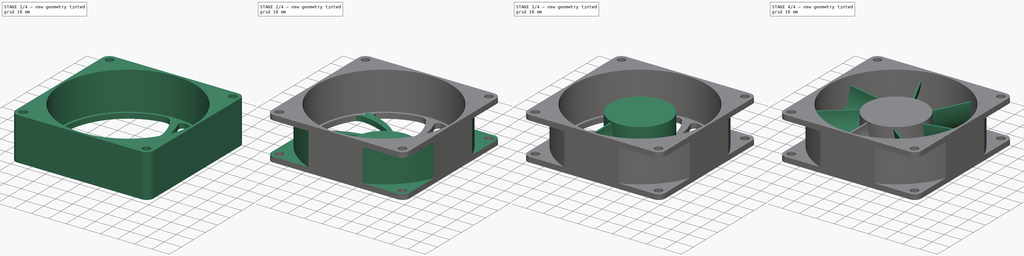
[diagram: build sequence overview — one tinted view per stage of 4, left to right]
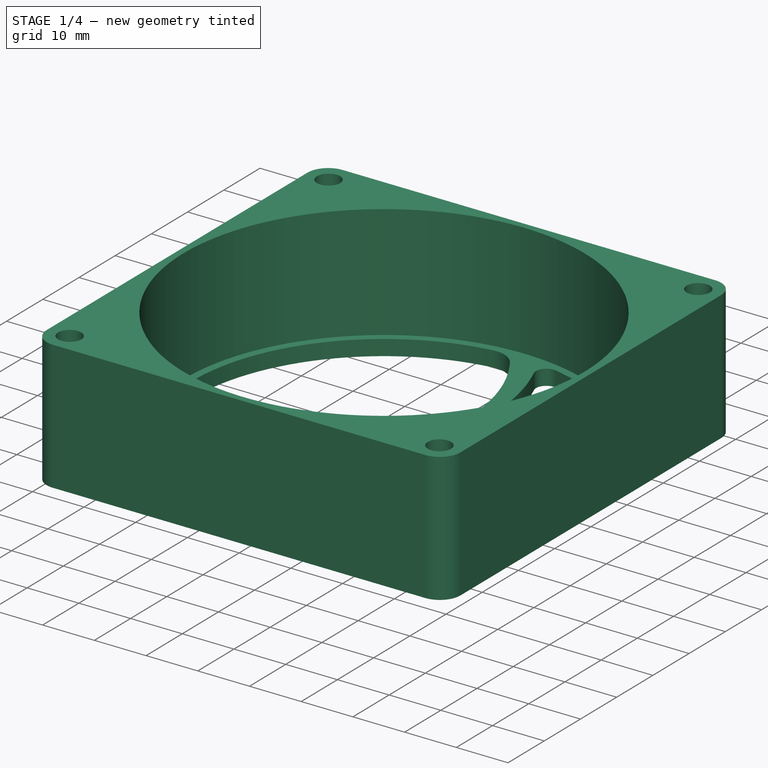
[diagram: stage 1 of 4 — iso view after this stage's code; geometry added in this stage tinted green]
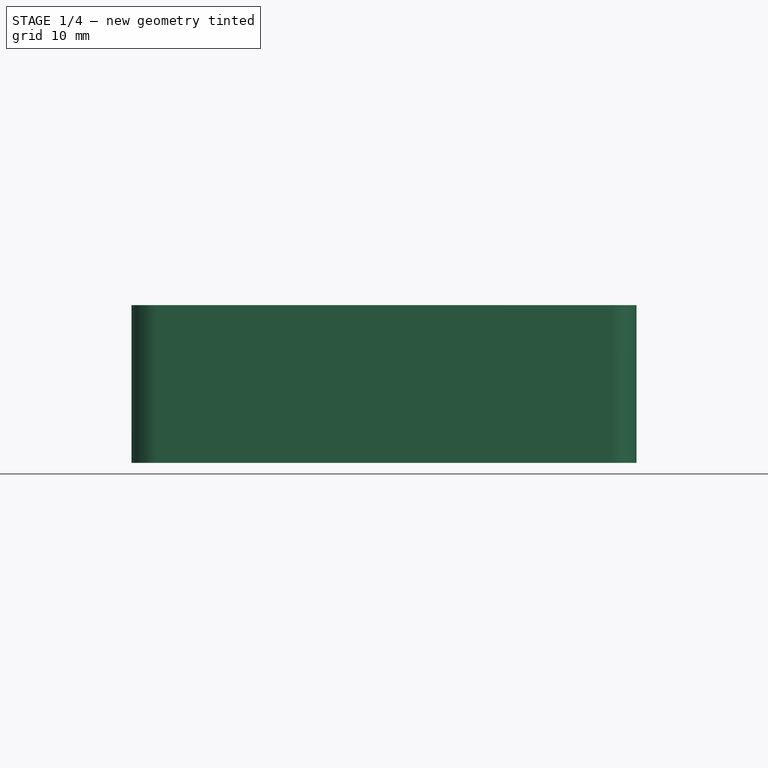
[diagram: stage 1 of 4 — front view after this stage's code; geometry added in this stage tinted green]
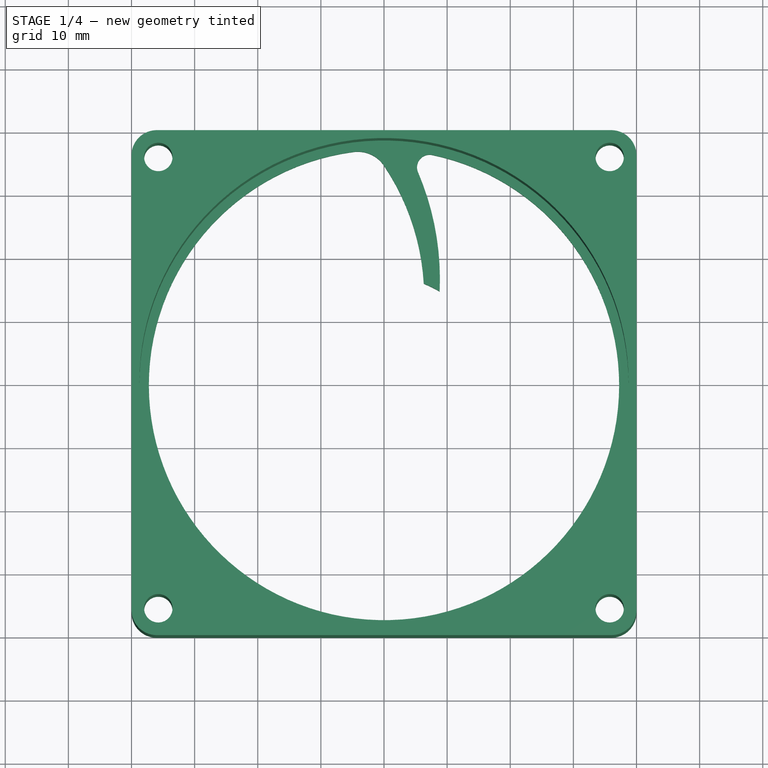
[diagram: stage 1 of 4 — top view after this stage's code; geometry added in this stage tinted green]
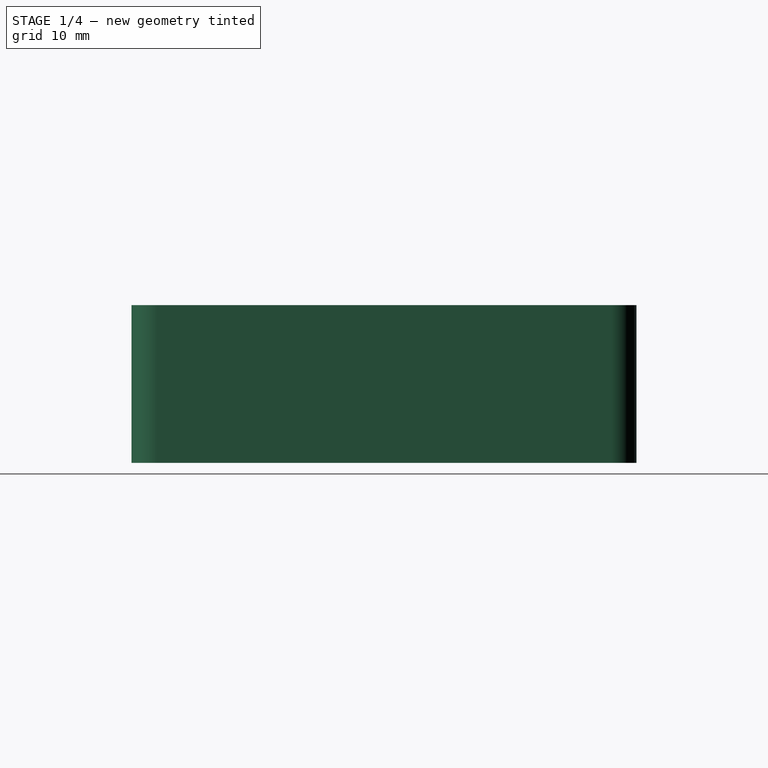
[diagram: stage 1 of 4 — right view after this stage's code; geometry added in this stage tinted green]
FCSTD DOCUMENT  (FreeCAD 1.0R39285 (Git))
Label: Axial Fan
License: All rights reserved
LicenseURL: https://en.wikipedia.org/wiki/All_rights_reserved
objects: Sketcher::SketchObject×9, PartDesign::CoordinateSystem×7, PartDesign::Pad×6, App::DocumentObjectGroup×3, PartDesign::PolarPattern×2, PartDesign::Pocket×2, PartDesign::Body×2, App::Link×2, Image::ImagePlane×1, Spreadsheet::Sheet×1, PartDesign::Groove×1, App::FeaturePython×1, App::Part×1
note: 58 computed .brp shape members not serialized (recipe doc carries the construction recipe); baked Part::Feature solids carry a one-line shape summary decoded from their .brp

FEATURE [Image::ImagePlane] _0mm_80X80X25_DC_12V_Low_Noise_8025_Brushless_Axial_Fan  label="80mm-80X80X25-DC-12V-Low-Noise-8025-Brushless-Axial-Fan"
  Placement = pos=(21,2.5,0) rot=(0,0,1;0rad)
  XSize = 149.403
  YSize = 103.082
FEATURE [Spreadsheet::Sheet] Spreadsheet
  cells = A1='Fan House; D1='Fan Blades; A2='Width; B2(FHWidth)==80 mm; D2='Height; E2(FBHeight)==21 mm; A3='Corner Radius; B3(FHCornerRadius)==4 mm; D3='Blade Outer Radius; E3(FBBladeOuterRadius)=; A4='Mount Hole Diameter; B4(FHMountHoleDiameter)==4.5 mm; D4='Blade Thickness; E4(FBBladeThickness)==1 mm; A5='Mount Hole Distance; B5(FHMountHoleDistance)==71.5 mm; D5='Blade Curve; E5(FBBladeCurve)==6 mm; A6='Center Hole Diameter; B6(FHCenterHoleDiameter)==77.5 mm; D6='Number of Blades; E6(FBNumberOfBlades)=7; A7='Height; B7(FHHeight)==25 mm; D7='Free Space; E7(FBFreeSpace)==0.5 mm; A8='Center Arms Radius Outer; B8(FHCenterArmsRadiusOuter)==43.2 mm; A9='Center Arms Radius Inner; B9(FHCenterArmsRadiusInner)==37.4 mm; A10='Center Arms Thickness; B10(FHCenterArmsThickness)==3 mm; A11='Center Arms Width Inner; B11(FHCenterArmsWidthInner)==2.8 mm; A12='Center Arms Width Outer; B12(FHCenterArmsWidthOuter)==5.5 mm; A13='Number of Center Arms; B13(FHNumbersOfCenterArms)=7; A14='Center Arms Outer Diameter; B14(FHCenterArmsOuterDiameter)==74.5 mm; A15='Center Plate Diameter; B15(FHCenterPlateDiameter)==34.5 mm; A16='Center Arms Outer Radius Larger; B16(FHCenterArmsOuterRadiusLarger)==5 mm; A17='Center Arms Outer Radius Smaller; B17(FHCenterArmsOuterRadiusSmaller)==2 mm; A18='Center Arms Top Placement; B18(FHCenterArmsTopPlacement)==4.8 mm; A19='Center Arms Bottom Placement; B19(FHCenterArmsBottomPlacement)==6.3 mm; A20='Larger Corner Radius; B20(FHLargerCornerRadius)==43 mm
FEATURE [Sketcher::SketchObject] Sketch
  ArcFitTolerance = 1e-06
  AttachmentSupport = -> [XY_Plane]
  FullyConstrained = true
  MakeInternals = false
  MapMode = 5
  expr: Constraints[17] = Spreadsheet.FHWidth
  expr: Constraints[21] = <<Spreadsheet>>.FHCornerRadius
  expr: Constraints[29] = <<Spreadsheet>>.FHMountHoleDistance
  expr: Constraints[30] = <<Spreadsheet>>.FHMountHoleDistance
  expr: Constraints[31] = <<Spreadsheet>>.FHMountHoleDiameter
  expr: Constraints[33] = <<Spreadsheet>>.FHCenterHoleDiameter
  sketch-geometry (15):
    g0: LineSegment StartX=-40 StartY=36 StartZ=0 EndX=-40 EndY=-36 EndZ=0
    g1: LineSegment StartX=-36 StartY=-40 StartZ=0 EndX=36 EndY=-40 EndZ=0
    g2: LineSegment StartX=40 StartY=-36 StartZ=0 EndX=40 EndY=36 EndZ=0
    g3: LineSegment StartX=36 StartY=40 StartZ=0 EndX=-36 EndY=40 EndZ=0
    g4: ArcOfCircle CenterX=-36 CenterY=36 CenterZ=0 NormalX=0 NormalY=0 NormalZ=1 AngleXU=0 Radius=4 StartAngle=1.5708 EndAngle=3.14159
    g5: ArcOfCircle CenterX=-36 CenterY=-36 CenterZ=0 NormalX=0 NormalY=0 NormalZ=1 AngleXU=0 Radius=4 StartAngle=3.14159 EndAngle=4.71239
    g6: ArcOfCircle CenterX=36 CenterY=-36 CenterZ=0 NormalX=0 NormalY=0 NormalZ=1 AngleXU=0 Radius=4 StartAngle=4.71239 EndAngle=6.28319
    g7: ArcOfCircle CenterX=36 CenterY=36 CenterZ=0 NormalX=0 NormalY=0 NormalZ=1 AngleXU=0 Radius=4 StartAngle=2e-16 EndAngle=1.5708
    g8: GeomPoint [constr] X=-40 Y=40 Z=0
    g9: GeomPoint [constr] X=40 Y=-40 Z=0
    g10: Circle CenterX=35.75 CenterY=35.75 CenterZ=0 NormalX=0 NormalY=0 NormalZ=1 AngleXU=0 Radius=2.25
    g11: Circle CenterX=-35.75 CenterY=35.75 CenterZ=0 NormalX=0 NormalY=0 NormalZ=1 AngleXU=0 Radius=2.25
    g12: Circle CenterX=-35.75 CenterY=-35.75 CenterZ=0 NormalX=0 NormalY=0 NormalZ=1 AngleXU=0 Radius=2.25
    g13: Circle CenterX=35.75 CenterY=-35.75 CenterZ=0 NormalX=0 NormalY=0 NormalZ=1 AngleXU=0 Radius=2.25
    g14: Circle CenterX=0 CenterY=0 CenterZ=0 NormalX=0 NormalY=0 NormalZ=1 AngleXU=0 Radius=38.75
  constraints (34):
    c: Tangent(g0,g4) = -1.5708
    c: Tangent(g0,g5) = -1.5708
    c: Tangent(g1,g5) = -1.5708
    c: Tangent(g1,g6) = -1.5708
    c: Tangent(g2,g6) = -1.5708
    c: Tangent(g2,g7) = -1.5708
    c: Tangent(g3,g7) = -1.5708
    c: Tangent(g3,g4) = -1.5708
    c: Vertical(g0)
    c: Horizontal(g1)
    c: Equal(g4,g5)
    c: Equal(g5,g6)
    c: Equal(g6,g7)
    c: PointOnObject(g8,g0)
    c: PointOnObject(g8,g3)
    c: PointOnObject(g9,g1)
    c: PointOnObject(g9,g2)
    c: DistanceY(g1,g3) = 80
    c: Symmetric(g3,g3,g-2)
    c: Symmetric(g2,g2,g-1)
    c: Equal(g3,g0)
    c: Radius(g7) = 4
    c: Symmetric(g10,g11,g-2)
    c: Vertical(g12,g11)
    c: Horizontal(g12,g13)
    c: Symmetric(g13,g10,g-1)
    c: Equal(g11,g10)
    c: Equal(g10,g13)
    c: Equal(g13,g12)
    c: DistanceX(g11,g10) = 71.5
    c: DistanceY(g12,g11) = 71.5
    c: Diameter(g13) = 4.5
    c: Coincident(g14,g-1)
    c: Diameter(g14) = 77.5
FEATURE [PartDesign::Pad] Pad
  Direction = (0,0,1)
  Length = 25
  Length2 = 10
  Profile = -> Sketch
  ReferenceAxis = -> Sketch [N_Axis]
  Refine = true
  Suppressed = false
  Type = 0
  expr: Length = <<Spreadsheet>>.FHHeight
FEATURE [Sketcher::SketchObject] Sketch001
  ArcFitTolerance = 1e-06
  AttachmentSupport = -> [XY_Plane]
  ExternalGeometry = -> [Pad]
  FullyConstrained = true
  MakeInternals = false
  MapMode = 5
  expr: Constraints[3] = <<Spreadsheet>>.FHCenterArmsOuterDiameter
  sketch-geometry (2):
    g0: Circle CenterX=0 CenterY=0 CenterZ=0 NormalX=0 NormalY=0 NormalZ=1 AngleXU=0 Radius=37.25
    g1: Circle CenterX=0 CenterY=0 CenterZ=0 NormalX=0 NormalY=0 NormalZ=1 AngleXU=0 Radius=38.75
  constraints (4):
    c: Coincident(g0,g-1)
    c: Coincident(g1,g0)
    c: Equal(g1,g-3)
    c: Diameter(g0) = 74.5
FEATURE [PartDesign::Pad] Pad001
  BaseFeature = -> Pad
  Direction = (0,0,1)
  Length = 3
  Length2 = 10
  Profile = -> Sketch001
  ReferenceAxis = -> Sketch001 [N_Axis]
  Refine = true
  Suppressed = false
  Type = 0
  expr: Length = <<Spreadsheet>>.FHCenterArmsThickness
FEATURE [Sketcher::SketchObject] Sketch002
  ArcFitTolerance = 1e-06
  AttachmentSupport = -> [XY_Plane]
  ExternalGeometry = -> [Pad001]
  FullyConstrained = true
  MakeInternals = false
  MapMode = 5
  expr: Constraints[12] = <<Spreadsheet>>.FHCenterArmsWidthInner
  expr: Constraints[13] = <<Spreadsheet>>.FHCenterArmsWidthOuter
  expr: Constraints[14] = <<Spreadsheet>>.FHCenterArmsTopPlacement
  expr: Constraints[15] = <<Spreadsheet>>.FHCenterArmsBottomPlacement
  expr: Constraints[16] = <<Spreadsheet>>.FHCenterArmsRadiusOuter
  expr: Constraints[17] = <<Spreadsheet>>.FHCenterArmsRadiusInner
  expr: Constraints[3] = <<Spreadsheet>>.FHCenterPlateDiameter
  expr: Constraints[6] = <<Spreadsheet>>.FHCenterArmsOuterRadiusLarger
  expr: Constraints[7] = <<Spreadsheet>>.FHCenterArmsOuterRadiusSmaller
  sketch-geometry (6):
    g0: ArcOfCircle CenterX=0 CenterY=0 CenterZ=0 NormalX=0 NormalY=0 NormalZ=1 AngleXU=0 Radius=37.25 StartAngle=1.36423 EndAngle=1.70001
    g1: ArcOfCircle CenterX=0 CenterY=0 CenterZ=0 NormalX=0 NormalY=0 NormalZ=1 AngleXU=0 Radius=17.25 StartAngle=1.03443 EndAngle=1.19693
    g2: ArcOfCircle CenterX=7.22966 CenterY=34.5006 CenterZ=0 NormalX=0 NormalY=0 NormalZ=1 AngleXU=0 Radius=2 StartAngle=1.36423 EndAngle=3.54501
    g3: ArcOfCircle CenterX=-4.1557 CenterY=31.9811 CenterZ=0 NormalX=0 NormalY=0 NormalZ=1 AngleXU=0 Radius=5 StartAngle=0.592263 EndAngle=1.70001
    g4: ArcOfCircle CenterX=-34.3419 CenterY=16.7568 CenterZ=0 NormalX=0 NormalY=0 NormalZ=1 AngleXU=0 Radius=43.2 StartAngle=6.23851 EndAngle=6.6866
    g5: ArcOfCircle CenterX=-31.0373 CenterY=13.8942 CenterZ=0 NormalX=0 NormalY=0 NormalZ=1 AngleXU=0 Radius=37.4 StartAngle=0.0578999 EndAngle=0.592263
  constraints (18):
    c: Coincident(g0,g-1)
    c: PointOnObject(g0,g-3)
    c: Coincident(g1,g0)
    c: Diameter(g1) = 34.5
    c: Tangent(g2,g0) = -1.5708
    c: Tangent(g3,g0) = -1.5708
    c: Radius(g3) = 5
    c: Radius(g2) = 2
    c: Coincident(g4,g1)
    c: Coincident(g5,g1)
    c: Tangent(g4,g2) = 1.5708
    c: Tangent(g5,g3) = -1.5708
    c: Distance(g1,g1) = 2.8
    c: Distance(g3,g2) = 5.5
    c: DistanceX(g0,g-1) = 4.8
    c: DistanceX(g-1,g1) = 6.3
    c: Radius(g4) = 43.2
    c: Radius(g5) = 37.4
FEATURE [PartDesign::Pad] Pad002
  BaseFeature = -> Pad001
  Direction = (0,0,1)
  Length = 3
  Length2 = 10
  Profile = -> Sketch002
  ReferenceAxis = -> Sketch002 [N_Axis]
  Refine = true
  Suppressed = false
  Type = 0
  expr: Length = <<Spreadsheet>>.FHCenterArmsThickness
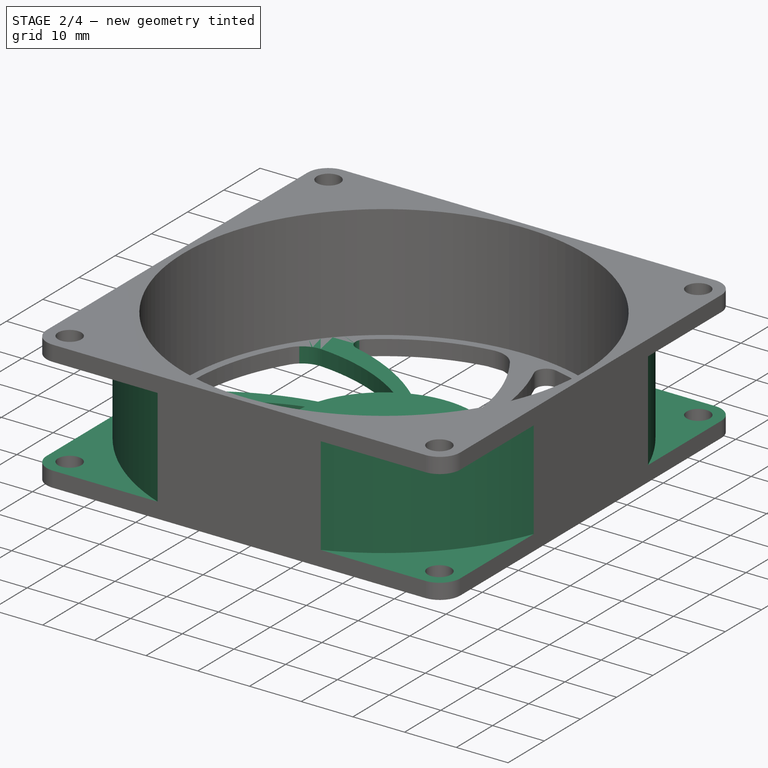
[diagram: stage 2 of 4 — iso view after this stage's code; geometry added in this stage tinted green]
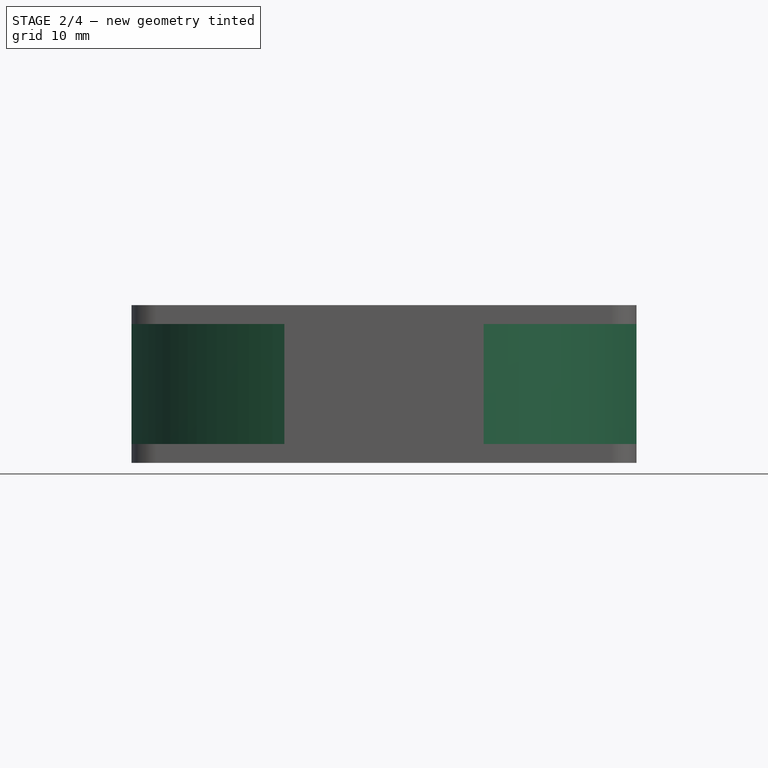
[diagram: stage 2 of 4 — front view after this stage's code; geometry added in this stage tinted green]
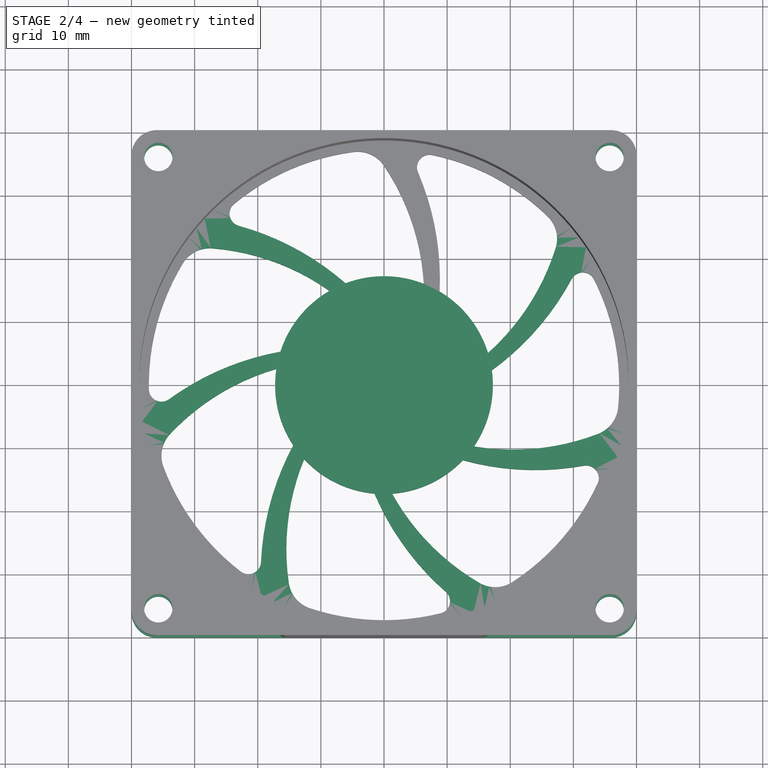
[diagram: stage 2 of 4 — top view after this stage's code; geometry added in this stage tinted green]
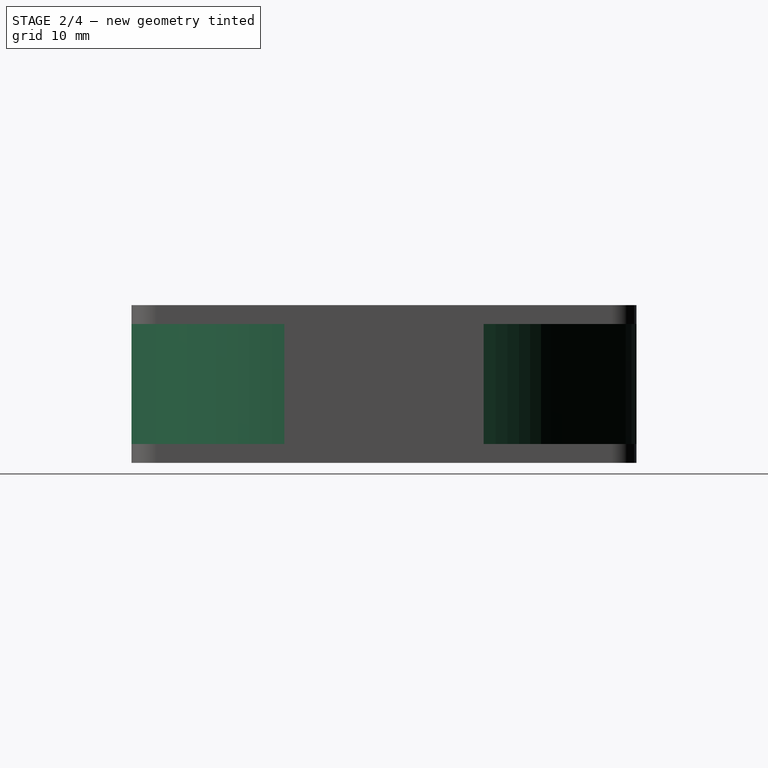
[diagram: stage 2 of 4 — right view after this stage's code; geometry added in this stage tinted green]
FEATURE [PartDesign::PolarPattern] PolarPattern
  Angle = 360
  Axis = -> Sketch002 [N_Axis]
  BaseFeature = -> Pad002
  Mode = 0
  Occurrences = 7
  Offset = 120
  Originals = -> [Pad002]
  Refine = true
  Suppressed = false
  TransformMode = 0
  expr: Occurrences = <<Spreadsheet>>.FHNumbersOfCenterArms
FEATURE [Sketcher::SketchObject] Sketch003
  ArcFitTolerance = 1e-06
  AttachmentSupport = -> [XY_Plane]
  ExternalGeometry = -> [PolarPattern]
  FullyConstrained = true
  MakeInternals = false
  MapMode = 5
  sketch-geometry (1):
    g0: Circle CenterX=0 CenterY=0 CenterZ=0 NormalX=0 NormalY=0 NormalZ=1 AngleXU=0 Radius=17.25
  constraints (2):
    c: Coincident(g0,g-1)
    c: Equal(g-3,g0)
FEATURE [PartDesign::Pad] Pad003
  BaseFeature = -> PolarPattern
  Direction = (0,0,1)
  Length = 3
  Length2 = 10
  Profile = -> Sketch003
  ReferenceAxis = -> Sketch003 [N_Axis]
  Refine = true
  Suppressed = false
  Type = 0
  expr: Length = <<Spreadsheet>>.FHCenterArmsThickness
FEATURE [Sketcher::SketchObject] Sketch004
  ArcFitTolerance = 1e-06
  AttachmentSupport = -> [XZ_Plane]
  ExternalGeometry = -> [Pad003]
  FullyConstrained = true
  MakeInternals = false
  MapMode = 5
  Placement = pos=(0,0,0) rot=(1,0,0;1.5708rad)
  expr: Constraints[10] = <<Spreadsheet>>.FHHeight / 2
  expr: Constraints[11] = <<Spreadsheet>>.FHLargerCornerRadius
  expr: Constraints[9] = <<Spreadsheet>>.FHHeight - <<Spreadsheet>>.FHCenterArmsThickness * 2
  sketch-geometry (5):
    g0: LineSegment StartX=43 StartY=22 StartZ=0 EndX=43 EndY=3 EndZ=0
    g1: LineSegment StartX=43 StartY=3 StartZ=0 EndX=62 EndY=3 EndZ=0
    g2: LineSegment StartX=62 StartY=3 StartZ=0 EndX=62 EndY=22 EndZ=0
    g3: LineSegment StartX=62 StartY=22 StartZ=0 EndX=43 EndY=22 EndZ=0
    g4: GeomPoint [constr] X=52.5 Y=12.5 Z=0
  constraints (13):
    c: Coincident(g0,g1)
    c: Coincident(g1,g2)
    c: Coincident(g2,g3)
    c: Coincident(g3,g0)
    c: Vertical(g0)
    c: Vertical(g2)
    c: Horizontal(g1)
    c: Horizontal(g3)
    c: Symmetric(g2,g0,g4)
    c: DistanceY(g2,g2) = 19
    c: DistanceY(g4) = 12.5
    c: DistanceX(g0) = 43
    c: Equal(g2,g3)
FEATURE [PartDesign::Groove] Groove
  Angle = 360
  Angle2 = 60
  Axis = (0,2e-16,1)
  Base = (0,0,0)
  BaseFeature = -> Pad003
  Profile = -> Sketch004
  ReferenceAxis = -> Sketch004 [V_Axis]
  Refine = true
  Suppressed = false
  Type = 0
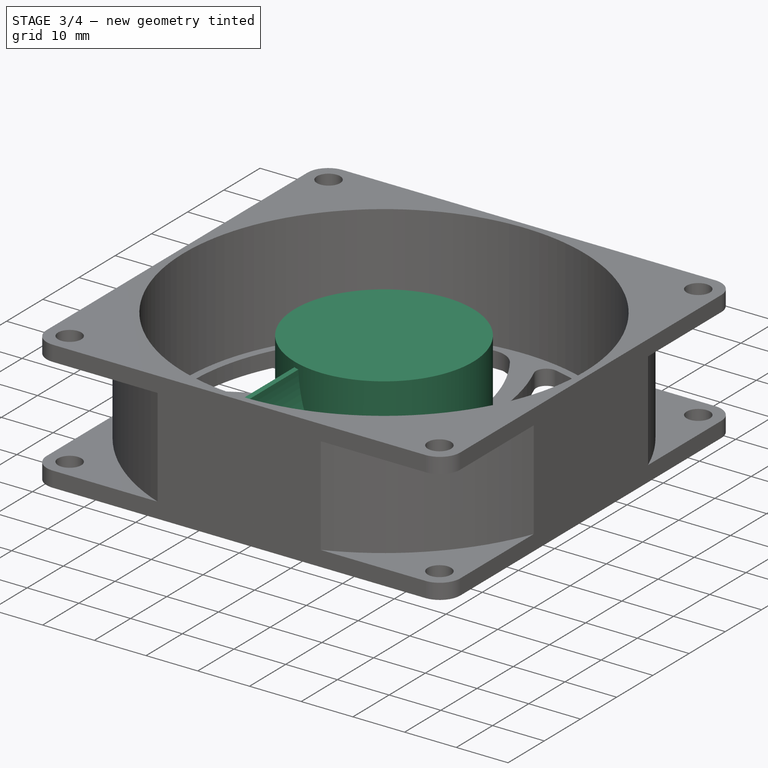
[diagram: stage 3 of 4 — iso view after this stage's code; geometry added in this stage tinted green]
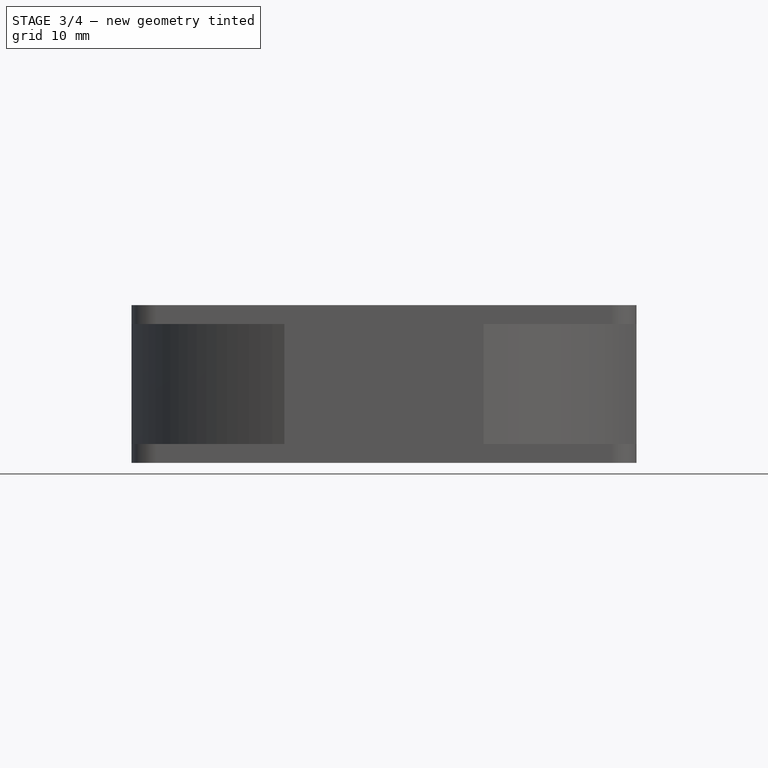
[diagram: stage 3 of 4 — front view after this stage's code; geometry added in this stage tinted green]
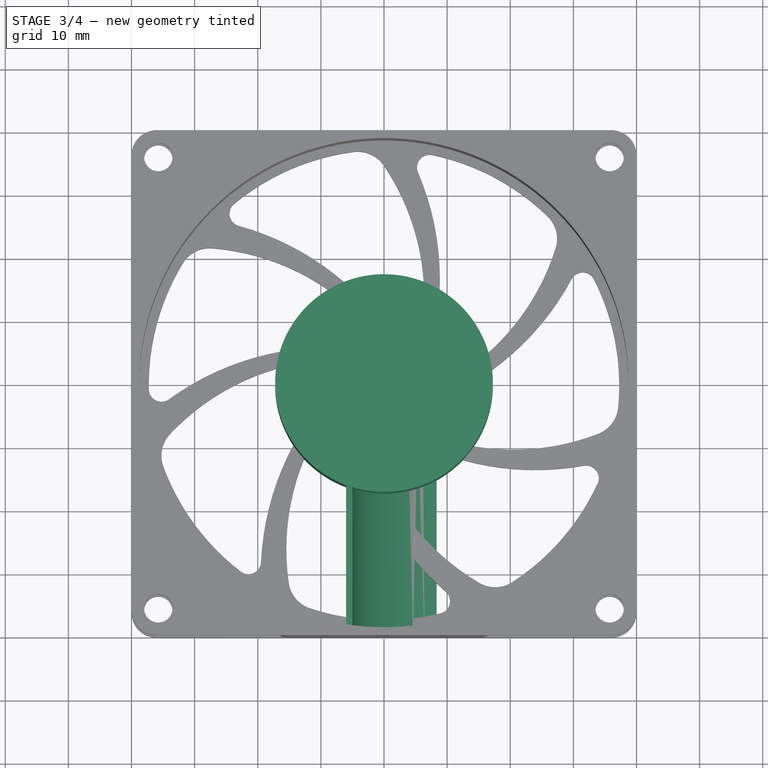
[diagram: stage 3 of 4 — top view after this stage's code; geometry added in this stage tinted green]
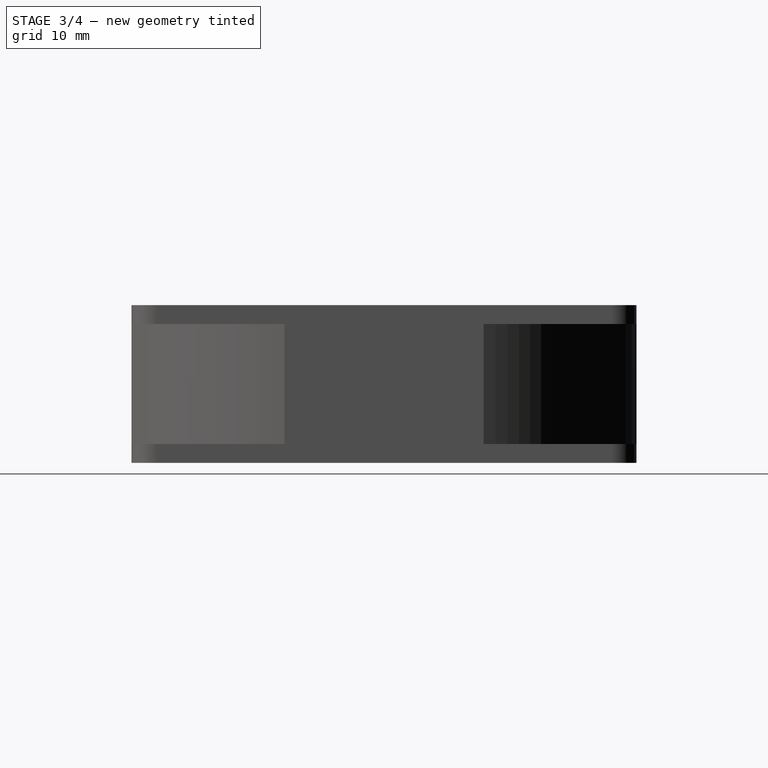
[diagram: stage 3 of 4 — right view after this stage's code; geometry added in this stage tinted green]
FEATURE [Sketcher::SketchObject] Sketch005
  ArcFitTolerance = 1e-06
  AttachmentSupport = -> [XY_Plane001]
  FullyConstrained = true
  MakeInternals = false
  MapMode = 5
  expr: Constraints[1] = <<Spreadsheet>>.FHCenterPlateDiameter
  sketch-geometry (1):
    g0: Circle CenterX=0 CenterY=0 CenterZ=0 NormalX=0 NormalY=0 NormalZ=1 AngleXU=0 Radius=17.25
  constraints (2):
    c: Coincident(g0,g-1)
    c: Diameter(g0) = 34.5
FEATURE [PartDesign::Pad] Pad004
  Direction = (0,0,1)
  Length = 21
  Length2 = 10
  Profile = -> Sketch005
  ReferenceAxis = -> Sketch005 [N_Axis]
  Refine = true
  Suppressed = false
  Type = 0
  expr: Length = <<Spreadsheet>>.FBHeight
FEATURE [Sketcher::SketchObject] Sketch006
  ArcFitTolerance = 1e-06
  AttachmentSupport = -> [XZ_Plane001]
  ExternalGeometry = -> [Pad004]
  FullyConstrained = true
  MakeInternals = false
  MapMode = 5
  Placement = pos=(0,0,0) rot=(1,0,0;1.5708rad)
  expr: Constraints[13] = <<Spreadsheet>>.FBBladeThickness
  expr: Constraints[2] = <<Spreadsheet>>.FBBladeCurve
  expr: Constraints[3] = <<Spreadsheet>>.FBBladeCurve
  expr: Constraints[8] = <<Spreadsheet>>.FBBladeThickness
  sketch-geometry (4):
    g0: ArcOfCircle CenterX=16.625 CenterY=21 CenterZ=0 NormalX=0 NormalY=0 NormalZ=1 AngleXU=0 Radius=22.6471 StartAngle=3.18576 EndAngle=4.22406
    g1: ArcOfCircle CenterX=16.6231 CenterY=21 CenterZ=0 NormalX=0 NormalY=0 NormalZ=1 AngleXU=0 Radius=21.6462 StartAngle=3.18781 EndAngle=4.31987
    g2: LineSegment StartX=-6 StartY=20 StartZ=0 EndX=-5 EndY=20 EndZ=0
    g3: LineSegment StartX=6 StartY=1 StartZ=0 EndX=8.34314 EndY=1 EndZ=0
  constraints (14):
    c: DistanceY(g0,g-3) = 1
    c: DistanceY(g-1,g0) = 1
    c: DistanceX(g0,g-1) = 6
    c: DistanceX(g0) = 6
    c: Perpendicular(g0,g-3)
    c: Coincident(g2,g0)
    c: Coincident(g2,g1)
    c: Horizontal(g2)
    c: DistanceX(g2,g2) = 1
    c: Perpendicular(g1,g-3)
    c: Coincident(g3,g0)
    c: Coincident(g3,g1)
    c: Horizontal(g3)
    c: Distance(g0,g1) = 1
FEATURE [PartDesign::Pad] Pad005
  BaseFeature = -> Pad004
  Direction = (0,-1,2e-16)
  Length = 40
  Length2 = 10
  Profile = -> Sketch006
  ReferenceAxis = -> Sketch006 [N_Axis]
  Refine = true
  Suppressed = false
  Type = 0
  expr: Length = <<Spreadsheet>>.FHWidth / 2
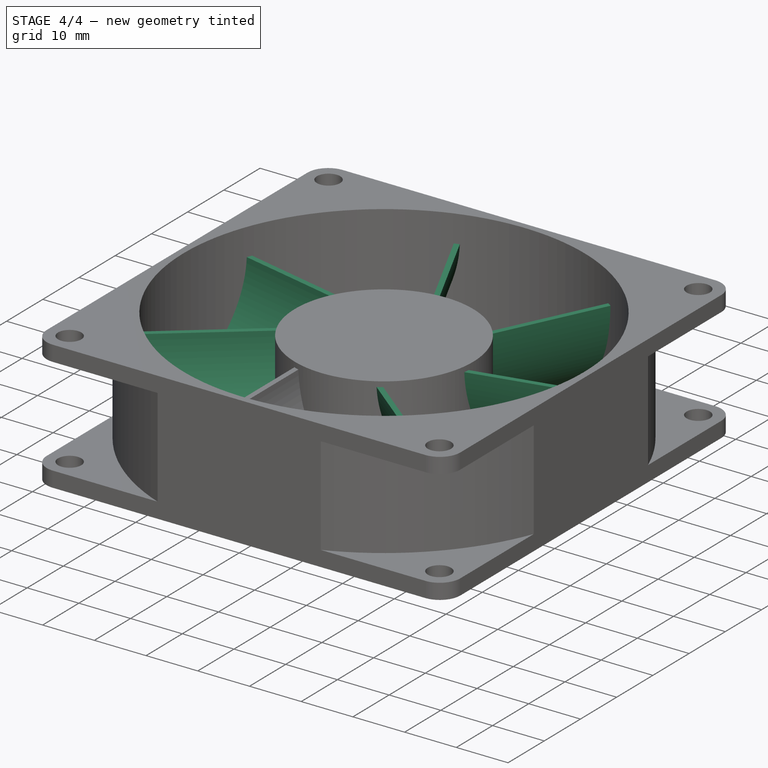
[diagram: stage 4 of 4 — iso view after this stage's code; geometry added in this stage tinted green]
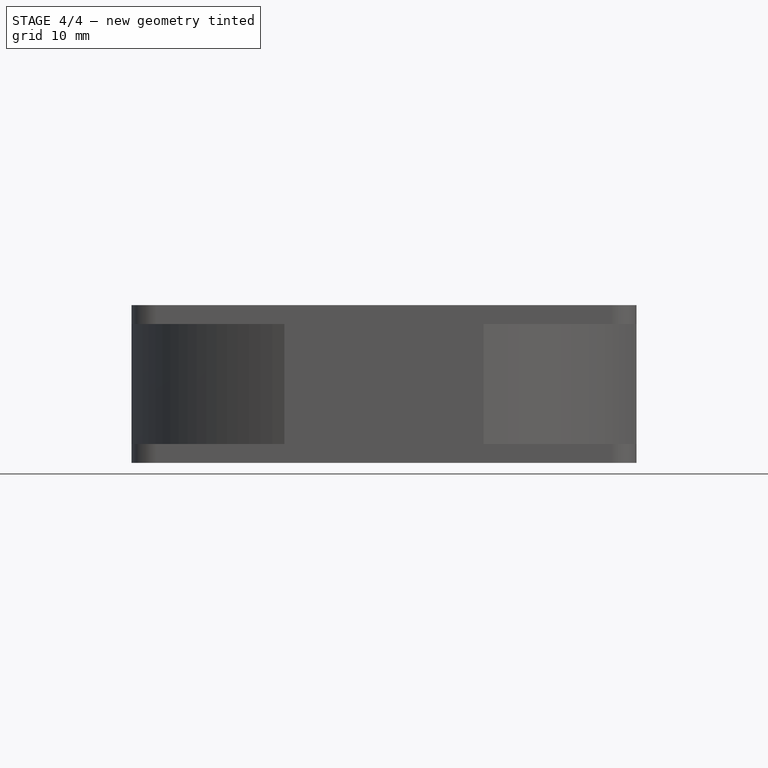
[diagram: stage 4 of 4 — front view after this stage's code; geometry added in this stage tinted green]
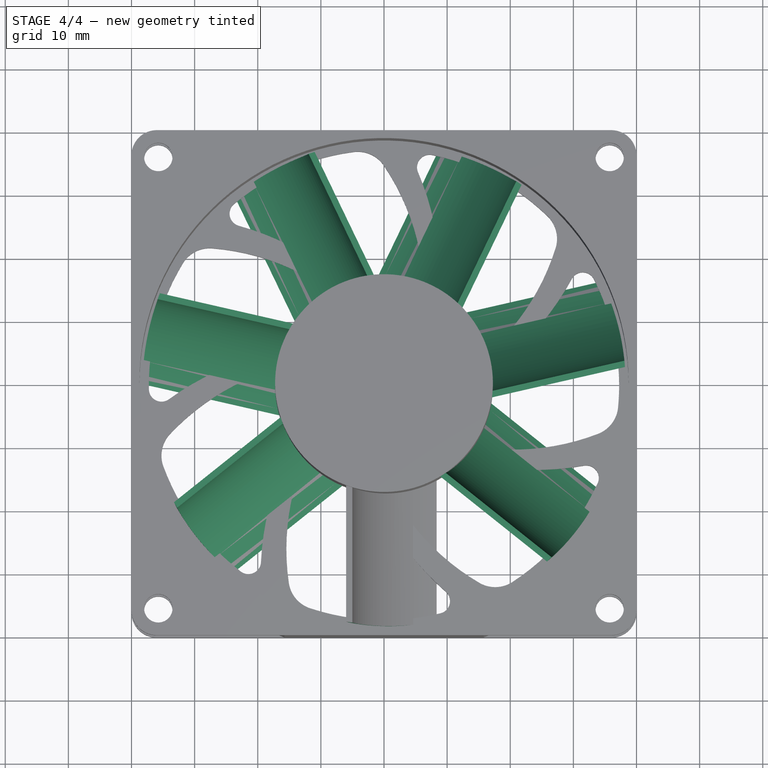
[diagram: stage 4 of 4 — top view after this stage's code; geometry added in this stage tinted green]
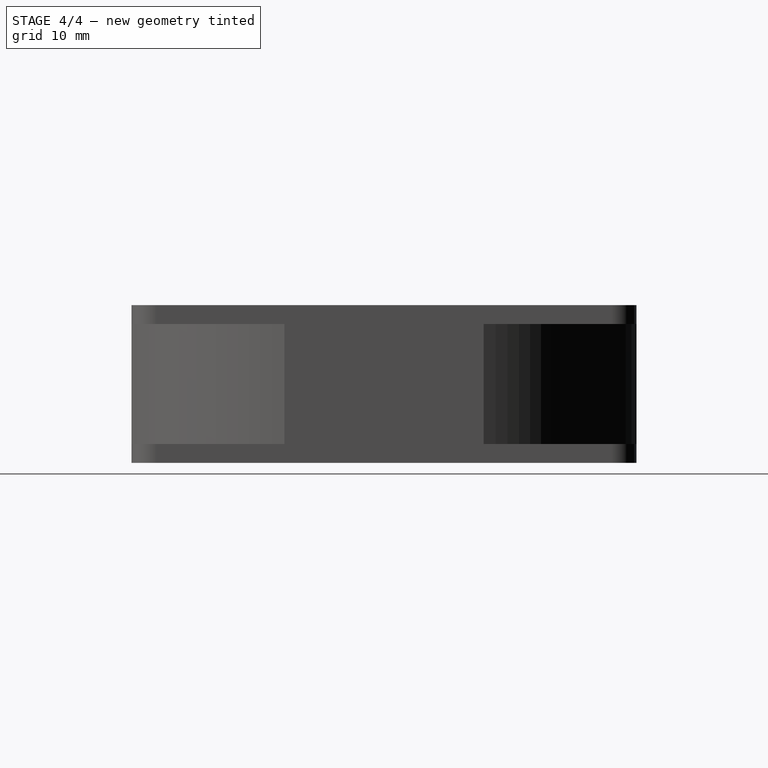
[diagram: stage 4 of 4 — right view after this stage's code; geometry added in this stage tinted green]
FEATURE [PartDesign::PolarPattern] PolarPattern001
  Angle = 360
  Axis = -> Sketch006 [V_Axis]
  BaseFeature = -> Pad005
  Mode = 0
  Occurrences = 7
  Offset = 120
  Originals = -> [Pad005]
  Refine = true
  Suppressed = false
  TransformMode = 0
  expr: Occurrences = <<Spreadsheet>>.FBNumberOfBlades
FEATURE [Sketcher::SketchObject] Sketch007
  ArcFitTolerance = 1e-06
  AttachmentSupport = -> [XY_Plane001]
  FullyConstrained = true
  MakeInternals = false
  MapMode = 5
  expr: Constraints[11] = <<Spreadsheet>>.FHWidth
  expr: Constraints[13] = <<Spreadsheet>>.FHCenterHoleDiameter - <<Spreadsheet>>.FBFreeSpace * 2
  sketch-geometry (6):
    g0: LineSegment StartX=-40 StartY=40 StartZ=0 EndX=-40 EndY=-40 EndZ=0
    g1: LineSegment StartX=-40 StartY=-40 StartZ=0 EndX=40 EndY=-40 EndZ=0
    g2: LineSegment StartX=40 StartY=-40 StartZ=0 EndX=40 EndY=40 EndZ=0
    g3: LineSegment StartX=40 StartY=40 StartZ=0 EndX=-40 EndY=40 EndZ=0
    g4: GeomPoint [constr] X=0 Y=0 Z=0
    g5: Circle CenterX=0 CenterY=0 CenterZ=0 NormalX=0 NormalY=0 NormalZ=1 AngleXU=0 Radius=38.25
  constraints (14):
    c: Coincident(g0,g1)
    c: Coincident(g1,g2)
    c: Coincident(g2,g3)
    c: Coincident(g3,g0)
    c: Vertical(g0)
    c: Vertical(g2)
    c: Horizontal(g1)
    c: Horizontal(g3)
    c: Symmetric(g2,g0,g4)
    c: Coincident(g4,g-1)
    c: Equal(g0,g3)
    c: DistanceY(g0,g0) = 80
    c: Coincident(g5,g4)
    c: Diameter(g5) = 76.5
FEATURE [PartDesign::Pocket] Pocket
  BaseFeature = -> PolarPattern001
  Direction = (0,0,-1)
  Length = 5
  Length2 = 5
  Profile = -> Sketch007
  ReferenceAxis = -> Sketch007 [N_Axis]
  Refine = true
  Reversed = true
  Suppressed = false
  Type = 1
FEATURE [Sketcher::SketchObject] Sketch008
  ArcFitTolerance = 1e-06
  AttachmentSupport = -> [Pocket]
  FullyConstrained = true
  MakeInternals = false
  MapMode = 5
  Placement = pos=(0,0,0) rot=(1,0,0;3.14159rad)
  expr: Constraints[1] = <<Spreadsheet>>.FHCenterPlateDiameter - <<Spreadsheet>>.FBBladeThickness * 2
  sketch-geometry (1):
    g0: Circle CenterX=0 CenterY=0 CenterZ=0 NormalX=0 NormalY=0 NormalZ=1 AngleXU=0 Radius=16.25
  constraints (2):
    c: Coincident(g0,g-1)
    c: Diameter(g0) = 32.5
FEATURE [PartDesign::Pocket] Pocket001
  BaseFeature = -> Pocket
  Direction = (0,0,1)
  Length = 20
  Length2 = 5
  Profile = -> Sketch008
  ReferenceAxis = -> Sketch008 [N_Axis]
  Refine = true
  Suppressed = false
  Type = 0
  expr: Length = <<Spreadsheet>>.FBHeight - <<Spreadsheet>>.FBBladeThickness
FEATURE [PartDesign::CoordinateSystem] TopCenter
  AttacherType = Attacher::AttachEngine3D
  AttachmentSupport = -> [Pocket001]
  MapMode = 45
  Placement = pos=(0,-9e-16,21) rot=(0,0,1;0rad)
FEATURE [PartDesign::Body] Body001  label="FanBlades"
  AllowCompound = false
  Group = -> [Sketch005,Pad004,Sketch006,Pad005,PolarPattern001,Sketch007,Pocket,Sketch008,Pocket001,TopCenter]
  Origin = -> Origin001
  Tip = -> Pocket001
FEATURE [PartDesign::CoordinateSystem] TopCenter001
  AttacherType = Attacher::AttachEngine3D
  AttachmentSupport = -> [Groove]
  MapMode = 11
  Placement = pos=(0,0,25) rot=(0,0,1;1.5708rad)
FEATURE [PartDesign::CoordinateSystem] BottomCenter001
  AttacherType = Attacher::AttachEngine3D
  AttachmentSupport = -> [Groove]
  MapMode = 45
  Placement = pos=(1.21e-14,0,0) rot=(0,0,1;0rad)
FEATURE [PartDesign::CoordinateSystem] BottoMmOUNThOLE  label="BottoMountHole"
  AttacherType = Attacher::AttachEngine3D
  AttachmentSupport = -> [Groove]
  MapMode = 11
  Placement = pos=(-35.75,35.75,0) rot=(0,0,1;1.5708rad)
FEATURE [PartDesign::CoordinateSystem] tOPmOUNThOLE  label="TopMountHole"
  AttacherType = Attacher::AttachEngine3D
  AttachmentSupport = -> [Groove]
  MapMode = 11
  Placement = pos=(-35.75,35.75,25) rot=(0,0,1;1.5708rad)
FEATURE [PartDesign::Body] Body  label="FanHouse"
  AllowCompound = false
  Group = -> [Sketch,Pad,Sketch001,Pad001,Sketch002,Pad002,PolarPattern,Sketch003,Pad003,Sketch004,Groove,TopCenter001,BottomCenter001,BottoMmOUNThOLE,tOPmOUNThOLE]
  Origin = -> Origin
  Tip = -> Groove
FEATURE [App::DocumentObjectGroup] Parts
  Group = -> [Body,Body001]
FEATURE [PartDesign::CoordinateSystem] LCS_Origin
  AttacherType = Attacher::AttachEngine3D
  AttachmentSupport = -> [X_Axis002]
  MapMode = 2
FEATURE [App::DocumentObjectGroup] Constraints
FEATURE [App::FeaturePython] Variables  # WARN: FeaturePython — macro-defined, semantics opaque (R4)
  Type = App::PropertyContainer
FEATURE [App::DocumentObjectGroup] Configurations
FEATURE [App::Link] FanHouse  label="FanHouse001"
  AttachedBy = #BottomCenter001
  AttachedTo = Parent Assembly#LCS_Origin
  LinkPlacement = pos=(-1.21e-14,0,0) rot=(0,0,1;0rad)
  LinkedObject = -> Body
  Placement = pos=(-1.21e-14,0,0) rot=(0,0,1;0rad)
  SolverId = Asm4EE
  expr: Placement = LCS_Origin.Placement * AttachmentOffset * BottomCenter001.Placement ^ -1
FEATURE [App::Link] FanBlades  label="FanBlades001"
  AttachedBy = #TopCenter
  AttachedTo = FanHouse#TopCenter001
  LinkPlacement = pos=(-1.29e-14,0,4) rot=(0,0,1;1.5708rad)
  LinkedObject = -> Body001
  Placement = pos=(-1.29e-14,0,4) rot=(0,0,1;1.5708rad)
  SolverId = Asm4EE
  expr: Placement = FanHouse.Placement * TopCenter001.Placement * AttachmentOffset * TopCenter.Placement ^ -1
FEATURE [PartDesign::CoordinateSystem] FanHouse_TopMountHole
  AttachedBy = Origin
  AttacherType = Attacher::AttachEngine3D
  Placement = pos=(-35.75,35.75,25) rot=(0,0,1;1.5708rad)
  SolverId = Asm4EE
  expr: Placement = FanHouse.Placement * tOPmOUNThOLE.Placement
FEATURE [App::Part] Assembly  label="80mmAxialFan"
  AssemblyType = Part::Link
  Group = -> [LCS_Origin,Constraints,Variables,Configurations,FanHouse,FanBlades,FanHouse_TopMountHole]
  Origin = -> Origin002
  Type = Assembly
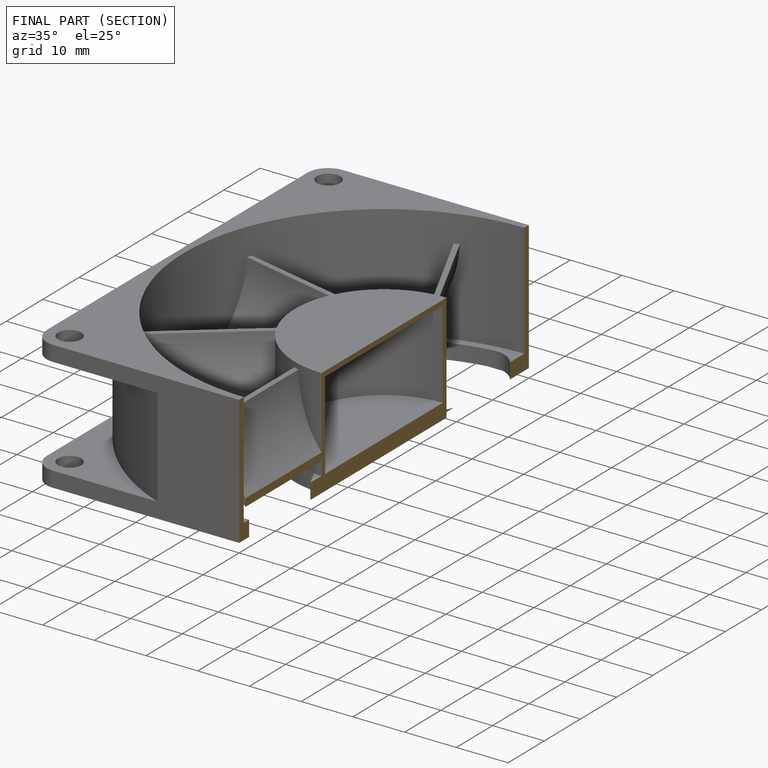
[diagram: finished part — half-section view (interior)]
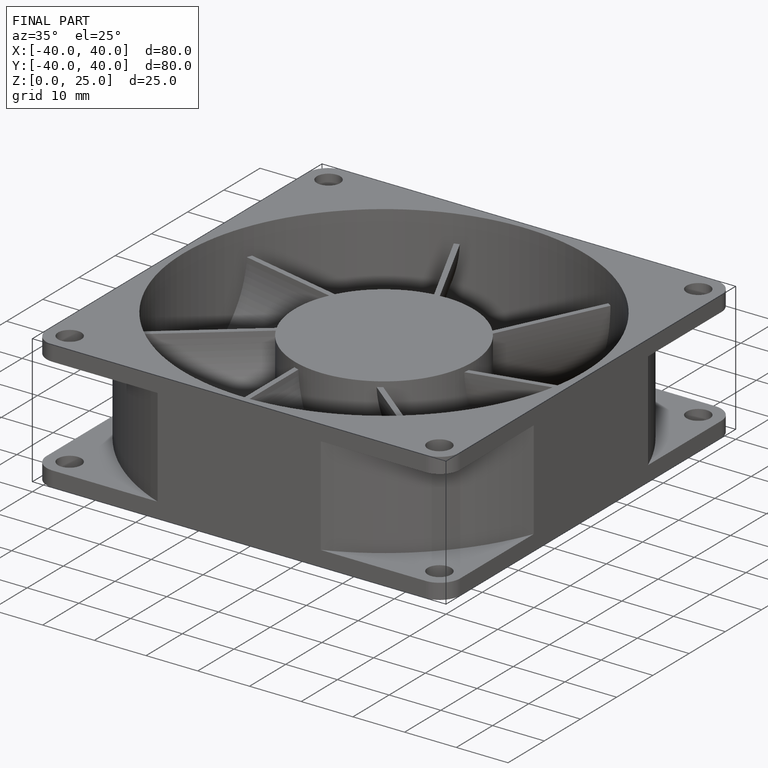
[diagram: finished part — iso view with bounding-box wireframe]
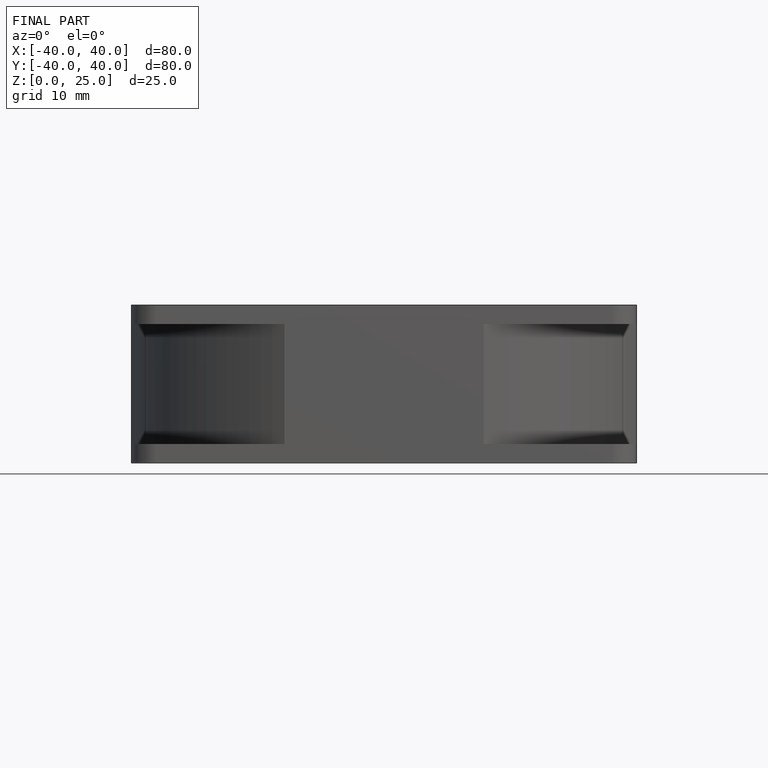
[diagram: finished part — front view with bounding-box wireframe]
